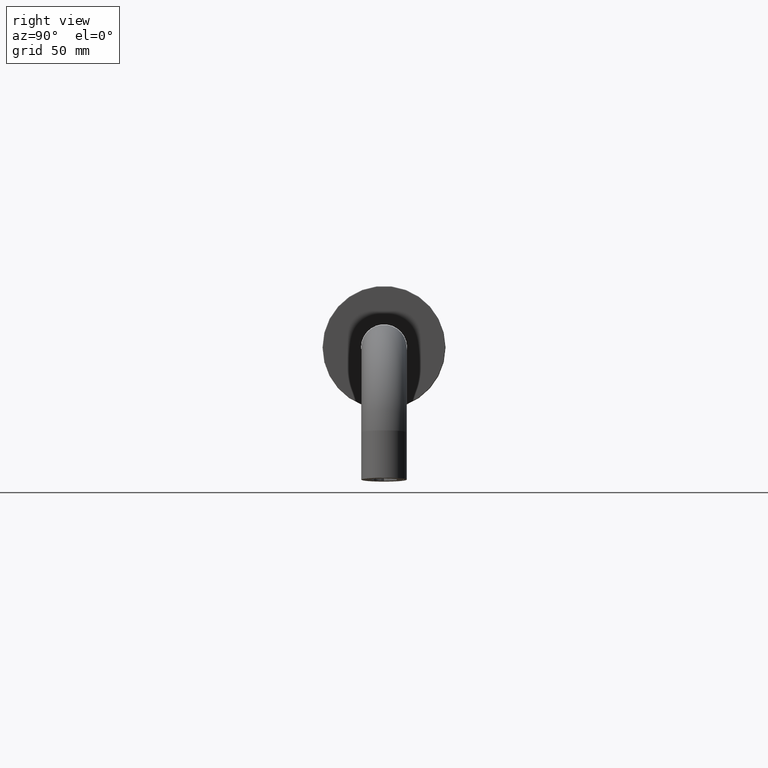
[diagram: clean part render]
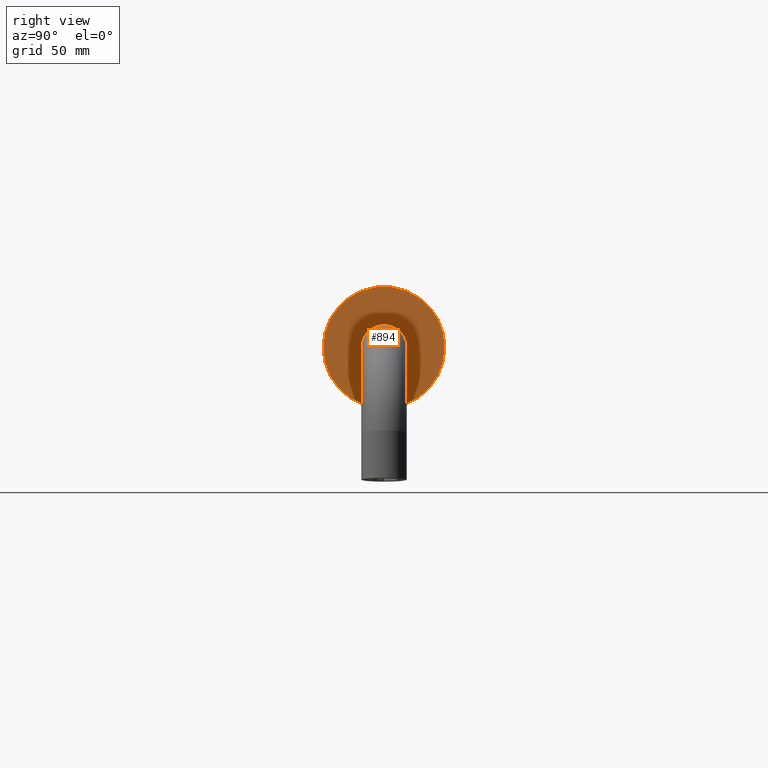
[diagram: same view with one face highlighted and labeled with its STEP entity id]
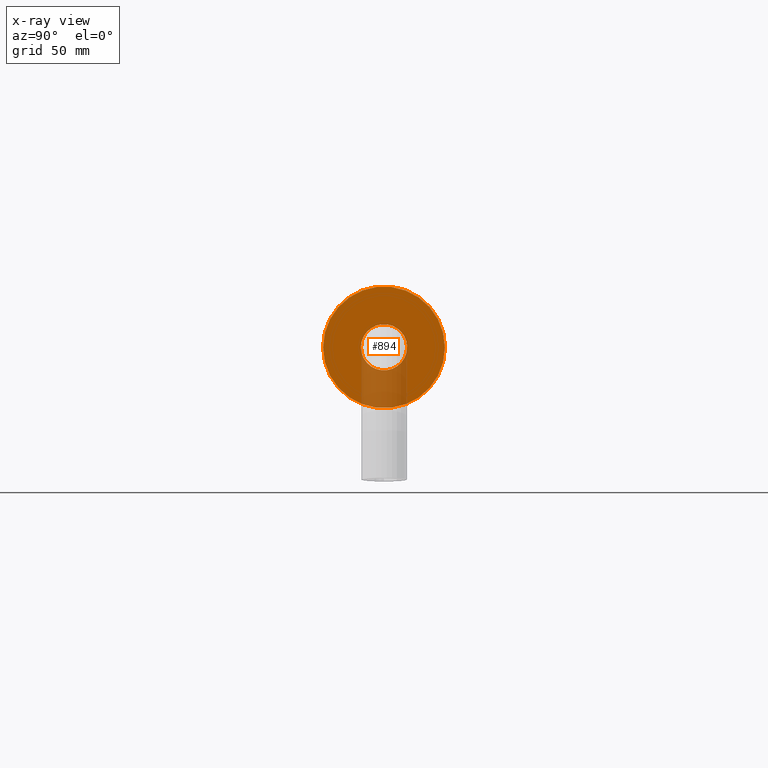
[diagram: x-ray of the same camera — body ghosted, the highlighted face saturated]
A machine part, right view. The second image highlights one B-rep face of the part: STEP entity #894.
The next image is the same camera in x-ray: the body ghosted, the highlighted face saturated — about 19% of this face is hidden behind the body in this view.
In plain terms, the highlighted planar face has unit normal (1, -0, 0).
Its self-contained STEP definition (entity closure, byte-faithful):
#117=PLANE('',#980);
#183=VERTEX_POINT('',#1126);
#185=VERTEX_POINT('',#1131);
#270=CIRCLE('',#978,29.45);
#272=CIRCLE('',#981,11.1500000000005);
#333=EDGE_CURVE('',#183,#183,#270,.T.);
#335=EDGE_CURVE('',#185,#185,#272,.T.);
#453=ORIENTED_EDGE('',*,*,#335,.F.);
#454=ORIENTED_EDGE('',*,*,#333,.T.);
#663=EDGE_LOOP('',(#453));
#664=EDGE_LOOP('',(#454));
#785=FACE_BOUND('',#663,.T.);
#786=FACE_BOUND('',#664,.T.);
#894=ADVANCED_FACE('',(#785,#786),#117,.T.);
#978=AXIS2_PLACEMENT_3D('',#1125,#1396,#1397);
#980=AXIS2_PLACEMENT_3D('',#1129,#1400,$);
#981=AXIS2_PLACEMENT_3D('',#1130,#1401,#1402);
#1125=CARTESIAN_POINT('',(-84.4261744394857,-15.2,45.544166336812));
#1126=CARTESIAN_POINT('',(-84.4261744394857,-44.65,45.544166336812));
#1129=CARTESIAN_POINT('',(-84.4261744394856,-35.5,45.544166336812));
#1130=CARTESIAN_POINT('',(-84.4261744394856,-15.2,45.544166336812));
#1131=CARTESIAN_POINT('',(-84.4261744394856,-26.3500000000004,45.544166336812));
#1396=DIRECTION('',(1.,-6.12303176911189E-017,6.12303176911189E-017));
#1397=DIRECTION('',(-1.80323285600345E-015,-29.45,0.));
#1400=DIRECTION('',(1.,-6.12303176911189E-017,6.12303176911189E-017));
#1401=DIRECTION('',(1.,-6.12303176911189E-017,6.12303176911189E-017));
#1402=DIRECTION('',(-6.82718042256009E-016,-11.1500000000005,0.));